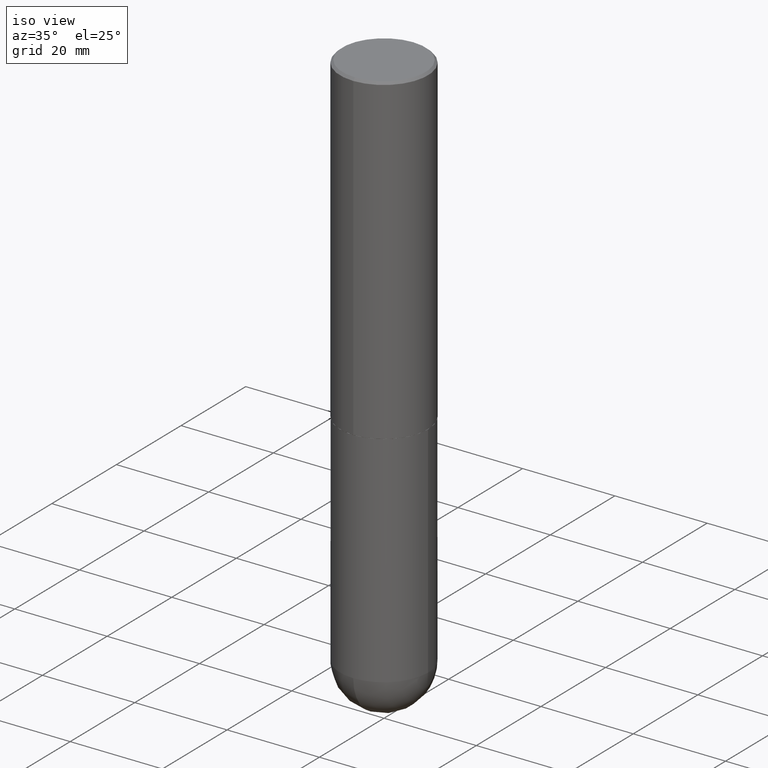
[diagram: clean part render]
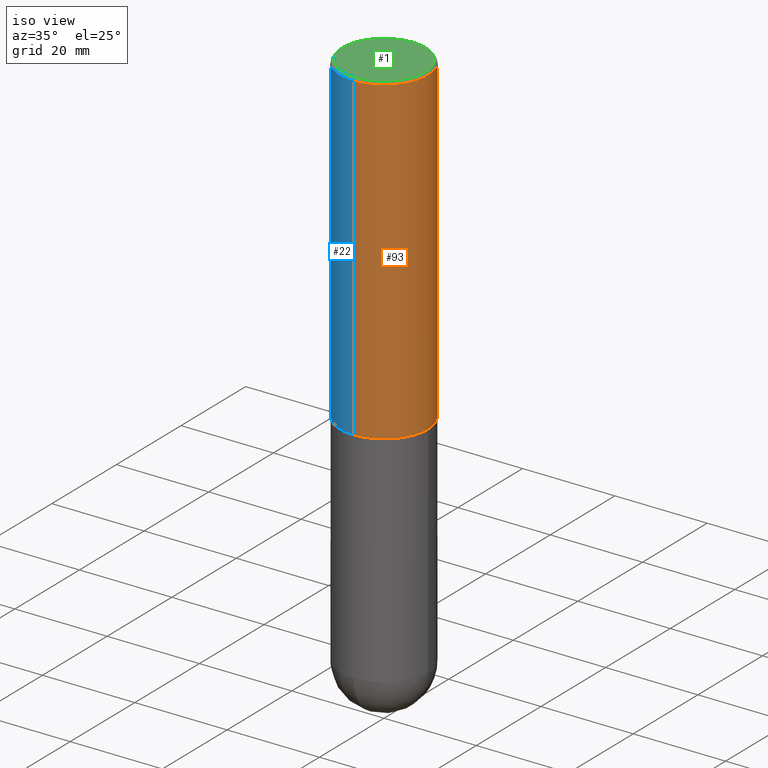
[diagram: same view with three faces highlighted in distinct colors, each labeled with its STEP entity id]
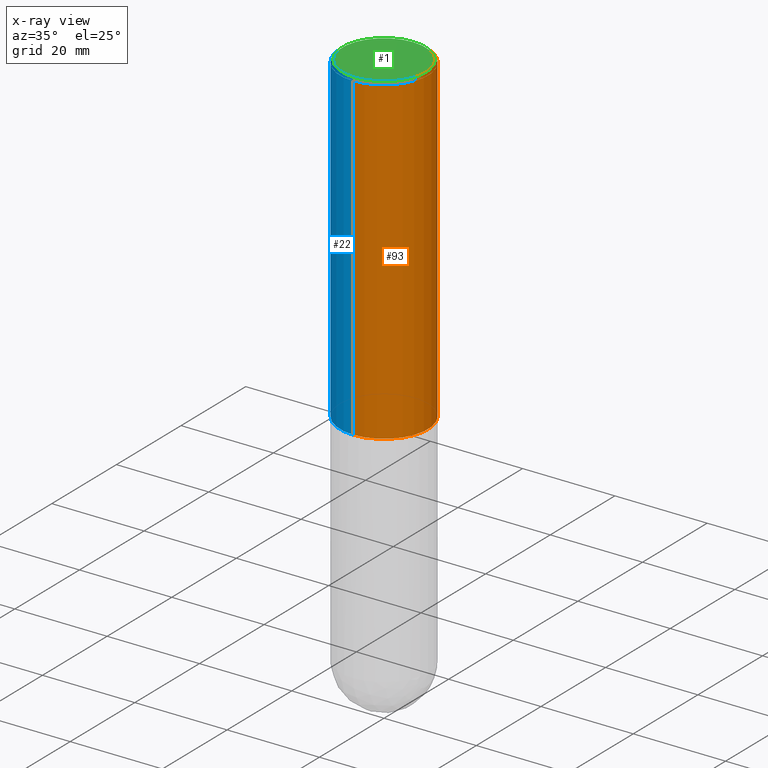
[diagram: x-ray of the same camera — body ghosted, the three highlighted faces saturated]
A machine part, iso view with three faces highlighted in distinct colors.
The next image is the same camera in x-ray (body ghosted, the three faces saturated) — at least one of them is partly hidden behind the body in this view.
Their STEP definitions:

[orange] entity #93 — the highlighted cylindrical surface (partial cylindrical patch) has radius 9.525 mm, axis along (-0, 0, 1).
#5 = DIRECTION ( 'NONE',  ( -2.444844981584964810E-29, 3.492374691176482632E-15, 1.000000000000000000 ) ) ;
#14 = CARTESIAN_POINT ( 'NONE',  ( 6.720878854377069375E-29, -9.600538026044152034E-15, -2.749000000000000110 ) ) ;
#26 = EDGE_CURVE ( 'NONE', #264, #188, #156, .T. ) ;
#29 = ORIENTED_EDGE ( 'NONE', *, *, #301, .T. ) ;
#31 = DIRECTION ( 'NONE',  ( -2.444844981584965091E-29, 3.492374691176482238E-15, 1.000000000000000000 ) ) ;
#32 = EDGE_CURVE ( 'NONE', #135, #392, #211, .T. ) ;
#38 = CARTESIAN_POINT ( 'NONE',  ( 4.889689963169950991E-31, -6.984749382352994551E-17, -0.02000000000000008715 ) ) ;
#49 = CARTESIAN_POINT ( 'NONE',  ( 0.000000000000000000, 0.000000000000000000, 0.000000000000000000 ) ) ;
#58 = LINE ( 'NONE', #185, #157 ) ;
#65 = CARTESIAN_POINT ( 'NONE',  ( 2.618611004132350016E-15, 0.3749999999999998890, -0.02000000000000139513 ) ) ;
#90 = EDGE_CURVE ( 'NONE', #264, #135, #58, .T. ) ;
#91 = DIRECTION ( 'NONE',  ( -2.444844981584964810E-29, 3.492374691176482632E-15, 1.000000000000000000 ) ) ;
#93 = ADVANCED_FACE ( 'NONE', ( #245 ), #270, .T. ) ;
#110 = ORIENTED_EDGE ( 'NONE', *, *, #90, .F. ) ;
#135 = VERTEX_POINT ( 'NONE', #311 ) ;
#138 = DIRECTION ( 'NONE',  ( -6.982962677686266711E-15, -1.000000000000000000, 3.494488891895537218E-15 ) ) ;
#146 = DIRECTION ( 'NONE',  ( -6.982962677686265922E-15, -1.000000000000000000, 2.913971193241877216E-15 ) ) ;
#156 = CIRCLE ( 'NONE', #258, 0.3750000000000004441 ) ;
#157 = VECTOR ( 'NONE', #181, 39.37007874015748143 ) ;
#165 = CARTESIAN_POINT ( 'NONE',  ( 2.664535259100411196E-15, 0.3749999999999907851, -2.749000000000000998 ) ) ;
#176 = DIRECTION ( 'NONE',  ( -6.982962677686266711E-15, -1.000000000000000000, 3.492374691176482632E-15 ) ) ;
#181 = DIRECTION ( 'NONE',  ( -2.444844981584965091E-29, 3.492374691176482238E-15, 1.000000000000000000 ) ) ;
#185 = CARTESIAN_POINT ( 'NONE',  ( -2.618611004132351594E-15, -0.3750000000000002220, 1.309640509191181727E-15 ) ) ;
#188 = VERTEX_POINT ( 'NONE', #165 ) ;
#199 = DIRECTION ( 'NONE',  ( -2.444844981584964810E-29, 3.492374691176482632E-15, 1.000000000000000000 ) ) ;
#211 = CIRCLE ( 'NONE', #353, 0.3749999999999999445 ) ;
#235 = AXIS2_PLACEMENT_3D ( 'NONE', #49, #91, #176 ) ;
#245 = FACE_OUTER_BOUND ( 'NONE', #288, .T. ) ;
#254 = CARTESIAN_POINT ( 'NONE',  ( -2.618611004132286119E-15, -0.3750000000000100475, -2.748999999999999222 ) ) ;
#258 = AXIS2_PLACEMENT_3D ( 'NONE', #14, #199, #146 ) ;
#264 = VERTEX_POINT ( 'NONE', #254 ) ;
#270 = CYLINDRICAL_SURFACE ( 'NONE', #235, 0.3750000000000002220 ) ;
#280 = CARTESIAN_POINT ( 'NONE',  ( 2.664535259100376880E-15, 0.3750000000000002220, -1.309640509191181727E-15 ) ) ;
#288 = EDGE_LOOP ( 'NONE', ( #397, #29, #396, #110 ) ) ;
#301 = EDGE_CURVE ( 'NONE', #188, #392, #377, .T. ) ;
#311 = CARTESIAN_POINT ( 'NONE',  ( -2.572686749164323153E-15, -0.3750000000000000555, -0.01999999999999877570 ) ) ;
#353 = AXIS2_PLACEMENT_3D ( 'NONE', #38, #5, #138 ) ;
#377 = LINE ( 'NONE', #280, #411 ) ;
#392 = VERTEX_POINT ( 'NONE', #65 ) ;
#396 = ORIENTED_EDGE ( 'NONE', *, *, #32, .F. ) ;
#397 = ORIENTED_EDGE ( 'NONE', *, *, #26, .T. ) ;
#411 = VECTOR ( 'NONE', #31, 39.37007874015748143 ) ;

[blue] entity #22 — the highlighted cylindrical surface (partial cylindrical patch) has radius 9.525 mm, axis along (-0, 0, 1).
#22 = ADVANCED_FACE ( 'NONE', ( #328 ), #321, .T. ) ;
#31 = DIRECTION ( 'NONE',  ( -2.444844981584965091E-29, 3.492374691176482238E-15, 1.000000000000000000 ) ) ;
#36 = CARTESIAN_POINT ( 'NONE',  ( 0.000000000000000000, 0.000000000000000000, 0.000000000000000000 ) ) ;
#53 = CARTESIAN_POINT ( 'NONE',  ( 6.720878854377069375E-29, -9.600538026044152034E-15, -2.749000000000000110 ) ) ;
#58 = LINE ( 'NONE', #185, #157 ) ;
#65 = CARTESIAN_POINT ( 'NONE',  ( 2.618611004132350016E-15, 0.3749999999999998890, -0.02000000000000139513 ) ) ;
#69 = EDGE_LOOP ( 'NONE', ( #114, #225, #252, #322 ) ) ;
#90 = EDGE_CURVE ( 'NONE', #264, #135, #58, .T. ) ;
#114 = ORIENTED_EDGE ( 'NONE', *, *, #301, .F. ) ;
#122 = EDGE_CURVE ( 'NONE', #188, #264, #380, .T. ) ;
#135 = VERTEX_POINT ( 'NONE', #311 ) ;
#157 = VECTOR ( 'NONE', #181, 39.37007874015748143 ) ;
#158 = AXIS2_PLACEMENT_3D ( 'NONE', #36, #203, #292 ) ;
#165 = CARTESIAN_POINT ( 'NONE',  ( 2.664535259100411196E-15, 0.3749999999999907851, -2.749000000000000998 ) ) ;
#181 = DIRECTION ( 'NONE',  ( -2.444844981584965091E-29, 3.492374691176482238E-15, 1.000000000000000000 ) ) ;
#182 = DIRECTION ( 'NONE',  ( -6.982962677686265922E-15, -1.000000000000000000, 2.913971193241877216E-15 ) ) ;
#185 = CARTESIAN_POINT ( 'NONE',  ( -2.618611004132351594E-15, -0.3750000000000002220, 1.309640509191181727E-15 ) ) ;
#188 = VERTEX_POINT ( 'NONE', #165 ) ;
#190 = DIRECTION ( 'NONE',  ( -6.982962677686266711E-15, -1.000000000000000000, 3.494488891895537218E-15 ) ) ;
#195 = CIRCLE ( 'NONE', #305, 0.3749999999999999445 ) ;
#203 = DIRECTION ( 'NONE',  ( -2.444844981584964810E-29, 3.492374691176482632E-15, 1.000000000000000000 ) ) ;
#225 = ORIENTED_EDGE ( 'NONE', *, *, #122, .T. ) ;
#252 = ORIENTED_EDGE ( 'NONE', *, *, #90, .T. ) ;
#254 = CARTESIAN_POINT ( 'NONE',  ( -2.618611004132286119E-15, -0.3750000000000100475, -2.748999999999999222 ) ) ;
#264 = VERTEX_POINT ( 'NONE', #254 ) ;
#280 = CARTESIAN_POINT ( 'NONE',  ( 2.664535259100376880E-15, 0.3750000000000002220, -1.309640509191181727E-15 ) ) ;
#282 = EDGE_CURVE ( 'NONE', #392, #135, #195, .T. ) ;
#292 = DIRECTION ( 'NONE',  ( -6.982962677686266711E-15, -1.000000000000000000, 3.492374691176482632E-15 ) ) ;
#299 = AXIS2_PLACEMENT_3D ( 'NONE', #53, #401, #182 ) ;
#301 = EDGE_CURVE ( 'NONE', #188, #392, #377, .T. ) ;
#305 = AXIS2_PLACEMENT_3D ( 'NONE', #350, #347, #190 ) ;
#311 = CARTESIAN_POINT ( 'NONE',  ( -2.572686749164323153E-15, -0.3750000000000000555, -0.01999999999999877570 ) ) ;
#321 = CYLINDRICAL_SURFACE ( 'NONE', #158, 0.3750000000000002220 ) ;
#322 = ORIENTED_EDGE ( 'NONE', *, *, #282, .F. ) ;
#328 = FACE_OUTER_BOUND ( 'NONE', #69, .T. ) ;
#347 = DIRECTION ( 'NONE',  ( -2.444844981584964810E-29, 3.492374691176482632E-15, 1.000000000000000000 ) ) ;
#350 = CARTESIAN_POINT ( 'NONE',  ( 4.889689963169950991E-31, -6.984749382352994551E-17, -0.02000000000000008715 ) ) ;
#377 = LINE ( 'NONE', #280, #411 ) ;
#380 = CIRCLE ( 'NONE', #299, 0.3750000000000004441 ) ;
#392 = VERTEX_POINT ( 'NONE', #65 ) ;
#401 = DIRECTION ( 'NONE',  ( -2.444844981584964810E-29, 3.492374691176482632E-15, 1.000000000000000000 ) ) ;
#411 = VECTOR ( 'NONE', #31, 39.37007874015748143 ) ;

[green] entity #1 — the highlighted planar face has unit normal (0, -0, -1).
#1 = ADVANCED_FACE ( 'NONE', ( #82 ), #261, .F. ) ;
#10 = VERTEX_POINT ( 'NONE', #109 ) ;
#20 = DIRECTION ( 'NONE',  ( -2.444844981584964810E-29, 3.492374691176482632E-15, 1.000000000000000000 ) ) ;
#39 = CARTESIAN_POINT ( 'NONE',  ( -2.504081769186607427E-15, -0.3549999999999997602, 1.398045117579700195E-15 ) ) ;
#54 = CIRCLE ( 'NONE', #219, 0.3549999999999997602 ) ;
#62 = CARTESIAN_POINT ( 'NONE',  ( -3.869018579184010415E-45, 5.526756365908368716E-31, 1.582521022120498680E-16 ) ) ;
#74 = AXIS2_PLACEMENT_3D ( 'NONE', #386, #390, #206 ) ;
#82 = FACE_OUTER_BOUND ( 'NONE', #410, .T. ) ;
#94 = DIRECTION ( 'NONE',  ( -6.982962677686266711E-15, -1.000000000000000000, 3.492374691176482238E-15 ) ) ;
#109 = CARTESIAN_POINT ( 'NONE',  ( 2.548781377355486324E-15, 0.3549999999999997602, -1.081540913155600656E-15 ) ) ;
#112 = EDGE_CURVE ( 'NONE', #192, #10, #54, .T. ) ;
#161 = CIRCLE ( 'NONE', #215, 0.3549999999999997602 ) ;
#192 = VERTEX_POINT ( 'NONE', #39 ) ;
#200 = ORIENTED_EDGE ( 'NONE', *, *, #112, .T. ) ;
#206 = DIRECTION ( 'NONE',  ( 6.982962677686265922E-15, 1.000000000000000000, -3.492374691176482238E-15 ) ) ;
#214 = DIRECTION ( 'NONE',  ( -6.982962677686266711E-15, -1.000000000000000000, 3.492374691176482238E-15 ) ) ;
#215 = AXIS2_PLACEMENT_3D ( 'NONE', #62, #407, #94 ) ;
#219 = AXIS2_PLACEMENT_3D ( 'NONE', #302, #20, #214 ) ;
#221 = ORIENTED_EDGE ( 'NONE', *, *, #406, .T. ) ;
#261 = PLANE ( 'NONE',  #74 ) ;
#302 = CARTESIAN_POINT ( 'NONE',  ( -3.869018579184010415E-45, 5.526756365908368716E-31, 1.582521022120498680E-16 ) ) ;
#386 = CARTESIAN_POINT ( 'NONE',  ( 2.478951750578623026E-15, 0.3549999999999997602, -1.160666964261625738E-15 ) ) ;
#390 = DIRECTION ( 'NONE',  ( 2.444844981584964810E-29, -3.492374691176482238E-15, -1.000000000000000000 ) ) ;
#406 = EDGE_CURVE ( 'NONE', #10, #192, #161, .T. ) ;
#407 = DIRECTION ( 'NONE',  ( -2.444844981584964810E-29, 3.492374691176482632E-15, 1.000000000000000000 ) ) ;
#410 = EDGE_LOOP ( 'NONE', ( #221, #200 ) ) ;